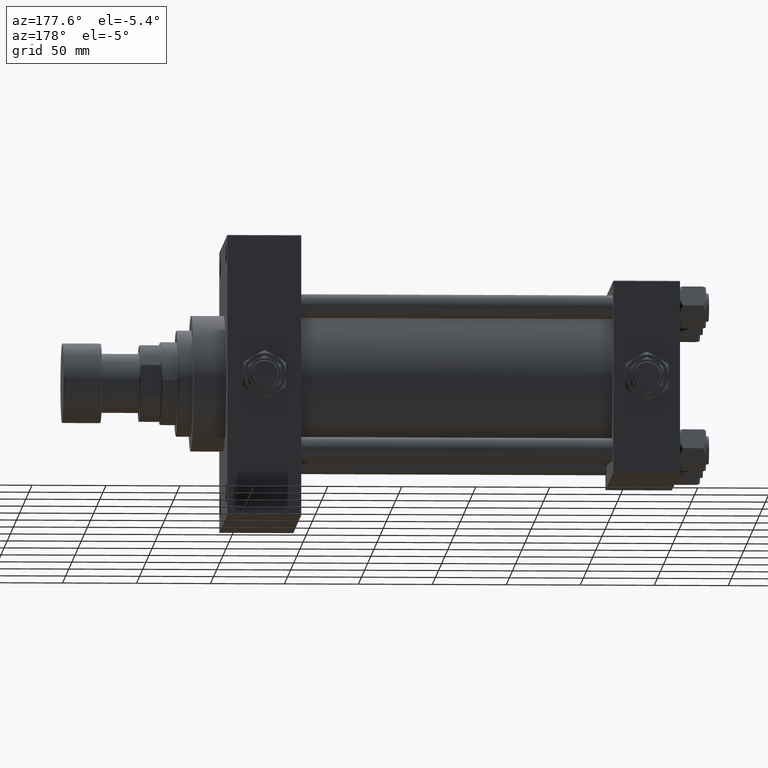
[diagram: clean part render]
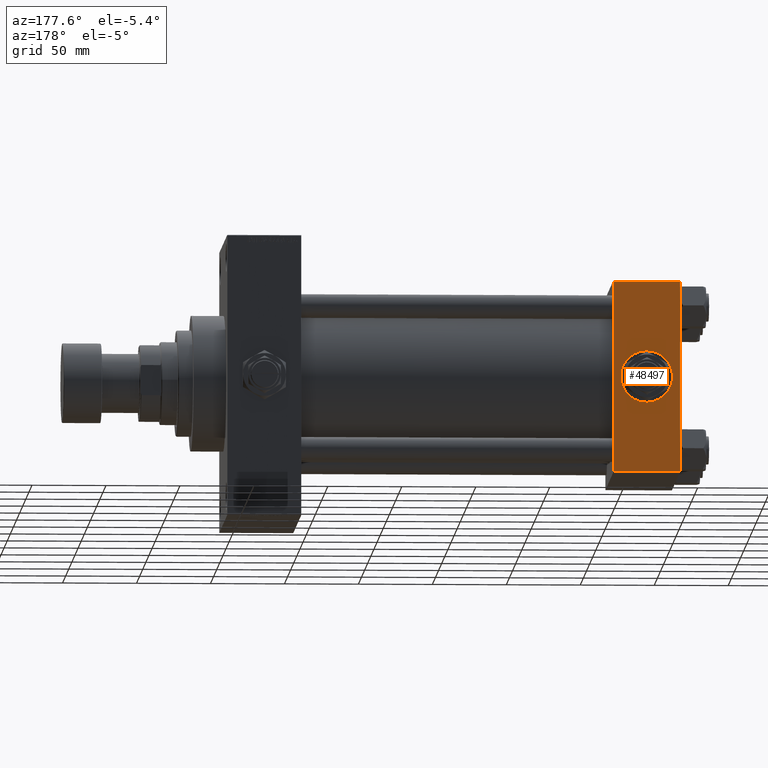
[diagram: same view with one face highlighted and labeled with its STEP entity id]
A machine part, auxiliary view. The second image highlights one B-rep face of the part: STEP entity #48497.
In plain terms, the highlighted planar face has unit normal (0, 1, 0).
Its self-contained STEP definition (entity closure, byte-faithful):
#448 = CARTESIAN_POINT ( 'NONE',  ( 0.000000000000000000, 65.00000000000000000, -64.49999999999995737 ) ) ;
#1046 = LINE ( 'NONE', #8943, #5433 ) ;
#1129 = LINE ( 'NONE', #32926, #28834 ) ;
#1307 = ORIENTED_EDGE ( 'NONE', *, *, #17697, .F. ) ;
#2196 = VERTEX_POINT ( 'NONE', #43667 ) ;
#2383 = AXIS2_PLACEMENT_3D ( 'NONE', #34649, #12256, #50178 ) ;
#2537 = DIRECTION ( 'NONE',  ( -0.000000000000000000, 1.000000000000000000, 0.000000000000000000 ) ) ;
#2790 = EDGE_CURVE ( 'NONE', #33609, #41433, #27605, .T. ) ;
#5433 = VECTOR ( 'NONE', #47625, 1000.000000000000000 ) ;
#8943 = CARTESIAN_POINT ( 'NONE',  ( 45.00000000000000000, 65.00000000000000000, -64.49999999999995737 ) ) ;
#9150 = CARTESIAN_POINT ( 'NONE',  ( 22.50000000000000000, 65.00000000000000000, 0.000000000000000000 ) ) ;
#9307 = CARTESIAN_POINT ( 'NONE',  ( 22.50000000000000000, 65.00000000000000000, 17.50000000000000000 ) ) ;
#9439 = CARTESIAN_POINT ( 'NONE',  ( 0.000000000000000000, 65.00000000000000000, 65.00000000000001421 ) ) ;
#10190 = PLANE ( 'NONE',  #18992 ) ;
#10962 = AXIS2_PLACEMENT_3D ( 'NONE', #9150, #47317, #16792 ) ;
#11189 = CARTESIAN_POINT ( 'NONE',  ( 45.00000000000000000, 65.00000000000000000, 65.00000000000001421 ) ) ;
#12256 = DIRECTION ( 'NONE',  ( 0.000000000000000000, 1.000000000000000000, 0.000000000000000000 ) ) ;
#13263 = DIRECTION ( 'NONE',  ( 0.000000000000000000, 0.000000000000000000, -1.000000000000000000 ) ) ;
#13342 = CARTESIAN_POINT ( 'NONE',  ( 0.000000000000000000, 65.00000000000000000, 64.49999999999998579 ) ) ;
#16792 = DIRECTION ( 'NONE',  ( 0.000000000000000000, 0.000000000000000000, 1.000000000000000000 ) ) ;
#17697 = EDGE_CURVE ( 'NONE', #41433, #33609, #22325, .T. ) ;
#17966 = EDGE_CURVE ( 'NONE', #36013, #2196, #1129, .T. ) ;
#18573 = EDGE_LOOP ( 'NONE', ( #32549, #40641, #42846, #41550 ) ) ;
#18992 = AXIS2_PLACEMENT_3D ( 'NONE', #11189, #2537, #37907 ) ;
#22300 = CARTESIAN_POINT ( 'NONE',  ( 45.00000000000000000, 65.00000000000000000, 64.49999999999998579 ) ) ;
#22325 = CIRCLE ( 'NONE', #10962, 17.50000000000000000 ) ;
#22628 = FACE_BOUND ( 'NONE', #43043, .T. ) ;
#22667 = DIRECTION ( 'NONE',  ( 1.000000000000000000, 0.000000000000000000, 0.000000000000000000 ) ) ;
#22912 = LINE ( 'NONE', #49654, #26738 ) ;
#23336 = ORIENTED_EDGE ( 'NONE', *, *, #2790, .F. ) ;
#23357 = EDGE_CURVE ( 'NONE', #2196, #27790, #1046, .T. ) ;
#26738 = VECTOR ( 'NONE', #22667, 1000.000000000000000 ) ;
#27605 = CIRCLE ( 'NONE', #2383, 17.50000000000000000 ) ;
#27790 = VERTEX_POINT ( 'NONE', #448 ) ;
#28021 = LINE ( 'NONE', #9439, #39743 ) ;
#28834 = VECTOR ( 'NONE', #40318, 1000.000000000000000 ) ;
#29528 = FACE_OUTER_BOUND ( 'NONE', #18573, .T. ) ;
#31685 = EDGE_CURVE ( 'NONE', #41985, #27790, #28021, .T. ) ;
#31868 = EDGE_CURVE ( 'NONE', #41985, #36013, #22912, .T. ) ;
#32549 = ORIENTED_EDGE ( 'NONE', *, *, #17966, .T. ) ;
#32926 = CARTESIAN_POINT ( 'NONE',  ( 45.00000000000000000, 65.00000000000000000, 65.00000000000001421 ) ) ;
#33609 = VERTEX_POINT ( 'NONE', #9307 ) ;
#34649 = CARTESIAN_POINT ( 'NONE',  ( 22.50000000000000000, 65.00000000000000000, 0.000000000000000000 ) ) ;
#36013 = VERTEX_POINT ( 'NONE', #22300 ) ;
#37907 = DIRECTION ( 'NONE',  ( 0.000000000000000000, -0.000000000000000000, 1.000000000000000000 ) ) ;
#39743 = VECTOR ( 'NONE', #13263, 1000.000000000000000 ) ;
#40318 = DIRECTION ( 'NONE',  ( 0.000000000000000000, 0.000000000000000000, -1.000000000000000000 ) ) ;
#40641 = ORIENTED_EDGE ( 'NONE', *, *, #23357, .T. ) ;
#41433 = VERTEX_POINT ( 'NONE', #50307 ) ;
#41550 = ORIENTED_EDGE ( 'NONE', *, *, #31868, .T. ) ;
#41985 = VERTEX_POINT ( 'NONE', #13342 ) ;
#42846 = ORIENTED_EDGE ( 'NONE', *, *, #31685, .F. ) ;
#43043 = EDGE_LOOP ( 'NONE', ( #23336, #1307 ) ) ;
#43667 = CARTESIAN_POINT ( 'NONE',  ( 45.00000000000000000, 65.00000000000000000, -64.49999999999995737 ) ) ;
#47317 = DIRECTION ( 'NONE',  ( 0.000000000000000000, 1.000000000000000000, 0.000000000000000000 ) ) ;
#47625 = DIRECTION ( 'NONE',  ( -1.000000000000000000, 0.000000000000000000, 0.000000000000000000 ) ) ;
#48497 = ADVANCED_FACE ( 'NONE', ( #22628, #29528 ), #10190, .T. ) ;
#49654 = CARTESIAN_POINT ( 'NONE',  ( 45.00000000000000000, 65.00000000000000000, 64.49999999999998579 ) ) ;
#50178 = DIRECTION ( 'NONE',  ( 0.000000000000000000, 0.000000000000000000, 1.000000000000000000 ) ) ;
#50307 = CARTESIAN_POINT ( 'NONE',  ( 22.50000000000000355, 65.00000000000000000, -17.50000000000000000 ) ) ;